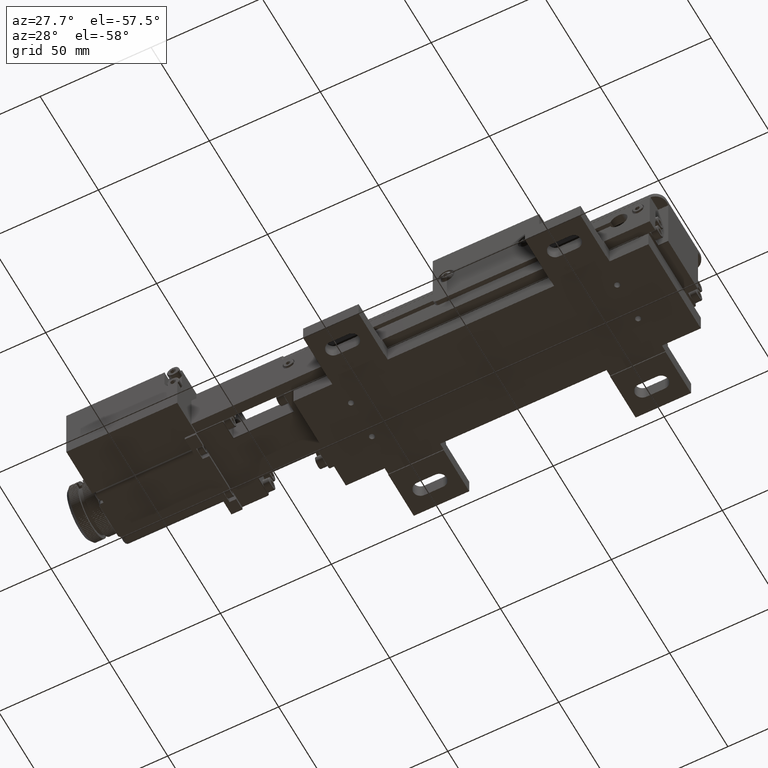
[diagram: clean part render]
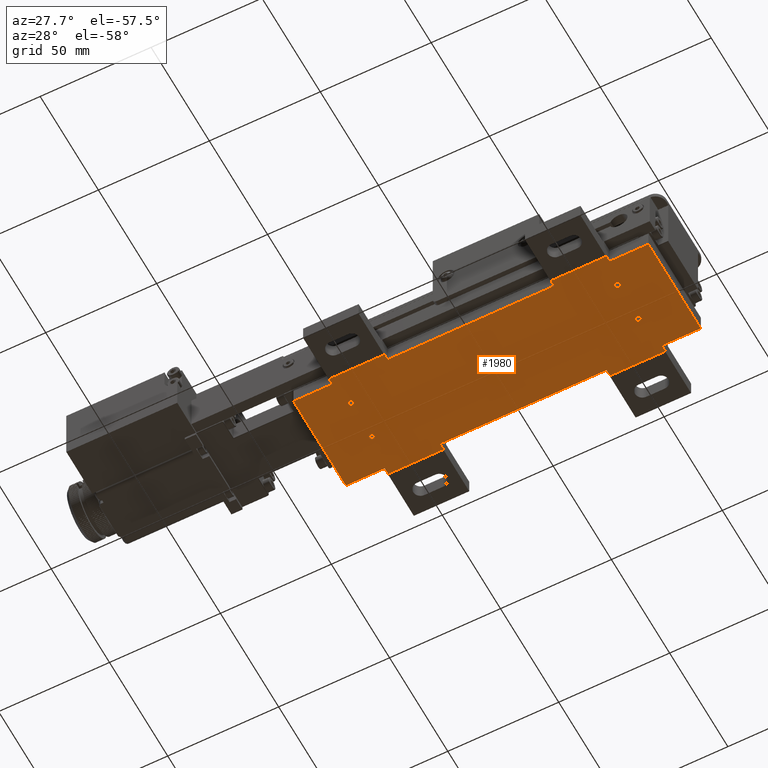
[diagram: same view with one face highlighted and labeled with its STEP entity id]
A machine part, auxiliary view. The second image highlights one B-rep face of the part: STEP entity #1980.
In plain terms, the highlighted planar face has unit normal (0, 0, -1).
Its self-contained STEP definition (entity closure, byte-faithful):
#21=FACE_BOUND('',#6661,.T.);
#22=FACE_BOUND('',#6662,.T.);
#23=FACE_BOUND('',#6663,.T.);
#24=FACE_BOUND('',#6664,.T.);
#522=PLANE('',#41165);
#1980=ADVANCED_FACE('',(#4317,#21,#22,#23,#24),#522,.T.);
#4317=FACE_OUTER_BOUND('',#6660,.T.);
#6660=EDGE_LOOP('',(#9391,#9392,#9393,#9394,#9395,#9396,#9397,#9398,#9399,
#9400,#9401,#9402,#9403,#9404,#9405,#9406,#9407,#9408,#9409,#9410));
#6661=EDGE_LOOP('',(#9411,#9412));
#6662=EDGE_LOOP('',(#9413,#9414));
#6663=EDGE_LOOP('',(#9415,#9416));
#6664=EDGE_LOOP('',(#9417,#9418));
#9391=ORIENTED_EDGE('',*,*,#22727,.F.);
#9392=ORIENTED_EDGE('',*,*,#22732,.F.);
#9393=ORIENTED_EDGE('',*,*,#22733,.F.);
#9394=ORIENTED_EDGE('',*,*,#22734,.F.);
#9395=ORIENTED_EDGE('',*,*,#22735,.F.);
#9396=ORIENTED_EDGE('',*,*,#22736,.F.);
#9397=ORIENTED_EDGE('',*,*,#22737,.F.);
#9398=ORIENTED_EDGE('',*,*,#22738,.F.);
#9399=ORIENTED_EDGE('',*,*,#22730,.F.);
#9400=ORIENTED_EDGE('',*,*,#22728,.T.);
#9401=ORIENTED_EDGE('',*,*,#22642,.F.);
#9402=ORIENTED_EDGE('',*,*,#22649,.F.);
#9403=ORIENTED_EDGE('',*,*,#22739,.F.);
#9404=ORIENTED_EDGE('',*,*,#22653,.F.);
#9405=ORIENTED_EDGE('',*,*,#22659,.F.);
#9406=ORIENTED_EDGE('',*,*,#22665,.F.);
#9407=ORIENTED_EDGE('',*,*,#22740,.F.);
#9408=ORIENTED_EDGE('',*,*,#22669,.F.);
#9409=ORIENTED_EDGE('',*,*,#22675,.F.);
#9410=ORIENTED_EDGE('',*,*,#22677,.T.);
#9411=ORIENTED_EDGE('',*,*,#22754,.F.);
#9412=ORIENTED_EDGE('',*,*,#22755,.F.);
#9413=ORIENTED_EDGE('',*,*,#22750,.F.);
#9414=ORIENTED_EDGE('',*,*,#22751,.F.);
#9415=ORIENTED_EDGE('',*,*,#22746,.F.);
#9416=ORIENTED_EDGE('',*,*,#22747,.F.);
#9417=ORIENTED_EDGE('',*,*,#22742,.F.);
#9418=ORIENTED_EDGE('',*,*,#22743,.F.);
#22642=EDGE_CURVE('',#36071,#36072,#29355,.T.);
#22649=EDGE_CURVE('',#36077,#36071,#29362,.T.);
#22653=EDGE_CURVE('',#36079,#36080,#29366,.T.);
#22659=EDGE_CURVE('',#36084,#36079,#29372,.T.);
#22665=EDGE_CURVE('',#36089,#36084,#29378,.T.);
#22669=EDGE_CURVE('',#36091,#36092,#29382,.T.);
#22675=EDGE_CURVE('',#36096,#36091,#29388,.T.);
#22677=EDGE_CURVE('',#36096,#36097,#29390,.T.);
#22727=EDGE_CURVE('',#36130,#36097,#29424,.T.);
#22728=EDGE_CURVE('',#36131,#36072,#29425,.T.);
#22730=EDGE_CURVE('',#36131,#36132,#29427,.T.);
#22732=EDGE_CURVE('',#36133,#36130,#29429,.T.);
#22733=EDGE_CURVE('',#36134,#36133,#29430,.T.);
#22734=EDGE_CURVE('',#36135,#36134,#29431,.T.);
#22735=EDGE_CURVE('',#36136,#36135,#29432,.T.);
#22736=EDGE_CURVE('',#36137,#36136,#29433,.T.);
#22737=EDGE_CURVE('',#36138,#36137,#29434,.T.);
#22738=EDGE_CURVE('',#36132,#36138,#29435,.T.);
#22739=EDGE_CURVE('',#36080,#36077,#29436,.T.);
#22740=EDGE_CURVE('',#36092,#36089,#29437,.T.);
#22742=EDGE_CURVE('',#36145,#36146,#33765,.T.);
#22743=EDGE_CURVE('',#36146,#36145,#33766,.T.);
#22746=EDGE_CURVE('',#36143,#36144,#33768,.T.);
#22747=EDGE_CURVE('',#36144,#36143,#33769,.T.);
#22750=EDGE_CURVE('',#36141,#36142,#33771,.T.);
#22751=EDGE_CURVE('',#36142,#36141,#33772,.T.);
#22754=EDGE_CURVE('',#36139,#36140,#33774,.T.);
#22755=EDGE_CURVE('',#36140,#36139,#33775,.T.);
#29355=B_SPLINE_CURVE_WITH_KNOTS('',1,(#62141,#62142),.UNSPECIFIED.,.F.,
 .F.,(2,2),(0.,17.5),.UNSPECIFIED.);
#29362=B_SPLINE_CURVE_WITH_KNOTS('',1,(#62155,#62156),.UNSPECIFIED.,.F.,
 .F.,(2,2),(0.,3.),.UNSPECIFIED.);
#29366=B_SPLINE_CURVE_WITH_KNOTS('',1,(#62163,#62164),.UNSPECIFIED.,.F.,
 .F.,(2,2),(0.,3.),.UNSPECIFIED.);
#29372=B_SPLINE_CURVE_WITH_KNOTS('',1,(#62175,#62176),.UNSPECIFIED.,.F.,
 .F.,(2,2),(0.,74.9999999999999),.UNSPECIFIED.);
#29378=B_SPLINE_CURVE_WITH_KNOTS('',1,(#62187,#62188),.UNSPECIFIED.,.F.,
 .F.,(2,2),(0.,3.),.UNSPECIFIED.);
#29382=B_SPLINE_CURVE_WITH_KNOTS('',1,(#62195,#62196),.UNSPECIFIED.,.F.,
 .F.,(2,2),(0.,3.0000000000001),.UNSPECIFIED.);
#29388=B_SPLINE_CURVE_WITH_KNOTS('',1,(#62207,#62208),.UNSPECIFIED.,.F.,
 .F.,(2,2),(0.,17.5000000000001),.UNSPECIFIED.);
#29390=B_SPLINE_CURVE_WITH_KNOTS('',1,(#62211,#62212),.UNSPECIFIED.,.F.,
 .F.,(2,2),(-44.9999999999999,0.),.UNSPECIFIED.);
#29424=B_SPLINE_CURVE_WITH_KNOTS('',1,(#62359,#62360),.UNSPECIFIED.,.F.,
 .F.,(2,2),(0.,17.5),.UNSPECIFIED.);
#29425=B_SPLINE_CURVE_WITH_KNOTS('',1,(#62361,#62362),.UNSPECIFIED.,.F.,
 .F.,(2,2),(-44.9999999999999,0.),.UNSPECIFIED.);
#29427=B_SPLINE_CURVE_WITH_KNOTS('',1,(#62365,#62366),.UNSPECIFIED.,.F.,
 .F.,(2,2),(0.,17.5),.UNSPECIFIED.);
#29429=B_SPLINE_CURVE_WITH_KNOTS('',1,(#62369,#62370),.UNSPECIFIED.,.F.,
 .F.,(2,2),(-2.9999999999999,0.),.UNSPECIFIED.);
#29430=B_SPLINE_CURVE_WITH_KNOTS('',1,(#62371,#62372),.UNSPECIFIED.,.F.,
 .F.,(2,2),(-25.,0.),.UNSPECIFIED.);
#29431=B_SPLINE_CURVE_WITH_KNOTS('',1,(#62373,#62374),.UNSPECIFIED.,.F.,
 .F.,(2,2),(-3.,0.),.UNSPECIFIED.);
#29432=B_SPLINE_CURVE_WITH_KNOTS('',1,(#62375,#62376),.UNSPECIFIED.,.F.,
 .F.,(2,2),(-75.,0.),.UNSPECIFIED.);
#29433=B_SPLINE_CURVE_WITH_KNOTS('',1,(#62377,#62378),.UNSPECIFIED.,.F.,
 .F.,(2,2),(-3.,0.),.UNSPECIFIED.);
#29434=B_SPLINE_CURVE_WITH_KNOTS('',1,(#62379,#62380),.UNSPECIFIED.,.F.,
 .F.,(2,2),(-25.,0.),.UNSPECIFIED.);
#29435=B_SPLINE_CURVE_WITH_KNOTS('',1,(#62381,#62382),.UNSPECIFIED.,.F.,
 .F.,(2,2),(-3.,0.),.UNSPECIFIED.);
#29436=B_SPLINE_CURVE_WITH_KNOTS('',1,(#62383,#62384),.UNSPECIFIED.,.F.,
 .F.,(2,2),(-25.,0.),.UNSPECIFIED.);
#29437=B_SPLINE_CURVE_WITH_KNOTS('',1,(#62385,#62386),.UNSPECIFIED.,.F.,
 .F.,(2,2),(-25.,0.),.UNSPECIFIED.);
#33765=(
BOUNDED_CURVE()
B_SPLINE_CURVE(2,(#62392,#62393,#62394,#62395,#62396),.UNSPECIFIED.,.F.,
 .F.)
B_SPLINE_CURVE_WITH_KNOTS((3,2,3),(0.,1.93129408379433,3.86258816758866),
 .UNSPECIFIED.)
CURVE()
GEOMETRIC_REPRESENTATION_ITEM()
RATIONAL_B_SPLINE_CURVE((1.,0.707106781186547,1.,0.707106781186547,1.))
REPRESENTATION_ITEM('')
);
#33766=(
BOUNDED_CURVE()
B_SPLINE_CURVE(2,(#62397,#62398,#62399,#62400,#62401),.UNSPECIFIED.,.F.,
 .F.)
B_SPLINE_CURVE_WITH_KNOTS((3,2,3),(0.,1.93129408379433,3.86258816758867),
 .UNSPECIFIED.)
CURVE()
GEOMETRIC_REPRESENTATION_ITEM()
RATIONAL_B_SPLINE_CURVE((1.,0.707106781186549,1.,0.707106781186549,1.))
REPRESENTATION_ITEM('')
);
#33768=(
BOUNDED_CURVE()
B_SPLINE_CURVE(2,(#62409,#62410,#62411,#62412,#62413),.UNSPECIFIED.,.F.,
 .F.)
B_SPLINE_CURVE_WITH_KNOTS((3,2,3),(0.,1.93129408379433,3.86258816758866),
 .UNSPECIFIED.)
CURVE()
GEOMETRIC_REPRESENTATION_ITEM()
RATIONAL_B_SPLINE_CURVE((1.,0.707106781186548,1.,0.707106781186548,1.))
REPRESENTATION_ITEM('')
);
#33769=(
BOUNDED_CURVE()
B_SPLINE_CURVE(2,(#62414,#62415,#62416,#62417,#62418),.UNSPECIFIED.,.F.,
 .F.)
B_SPLINE_CURVE_WITH_KNOTS((3,2,3),(0.,1.93129408379433,3.86258816758866),
 .UNSPECIFIED.)
CURVE()
GEOMETRIC_REPRESENTATION_ITEM()
RATIONAL_B_SPLINE_CURVE((1.,0.707106781186548,1.,0.707106781186548,1.))
REPRESENTATION_ITEM('')
);
#33771=(
BOUNDED_CURVE()
B_SPLINE_CURVE(2,(#62426,#62427,#62428,#62429,#62430),.UNSPECIFIED.,.F.,
 .F.)
B_SPLINE_CURVE_WITH_KNOTS((3,2,3),(0.,1.93129408379432,3.86258816758865),
 .UNSPECIFIED.)
CURVE()
GEOMETRIC_REPRESENTATION_ITEM()
RATIONAL_B_SPLINE_CURVE((1.,0.707106781186549,1.,0.707106781186549,1.))
REPRESENTATION_ITEM('')
);
#33772=(
BOUNDED_CURVE()
B_SPLINE_CURVE(2,(#62431,#62432,#62433,#62434,#62435),.UNSPECIFIED.,.F.,
 .F.)
B_SPLINE_CURVE_WITH_KNOTS((3,2,3),(0.,1.93129408379431,3.86258816758862),
 .UNSPECIFIED.)
CURVE()
GEOMETRIC_REPRESENTATION_ITEM()
RATIONAL_B_SPLINE_CURVE((1.,0.707106781186546,1.,0.707106781186546,1.))
REPRESENTATION_ITEM('')
);
#33774=(
BOUNDED_CURVE()
B_SPLINE_CURVE(2,(#62443,#62444,#62445,#62446,#62447),.UNSPECIFIED.,.F.,
 .F.)
B_SPLINE_CURVE_WITH_KNOTS((3,2,3),(0.,1.93129408379433,3.86258816758866),
 .UNSPECIFIED.)
CURVE()
GEOMETRIC_REPRESENTATION_ITEM()
RATIONAL_B_SPLINE_CURVE((1.,0.707106781186548,1.,0.707106781186548,1.))
REPRESENTATION_ITEM('')
);
#33775=(
BOUNDED_CURVE()
B_SPLINE_CURVE(2,(#62448,#62449,#62450,#62451,#62452),.UNSPECIFIED.,.F.,
 .F.)
B_SPLINE_CURVE_WITH_KNOTS((3,2,3),(0.,1.93129408379433,3.86258816758866),
 .UNSPECIFIED.)
CURVE()
GEOMETRIC_REPRESENTATION_ITEM()
RATIONAL_B_SPLINE_CURVE((1.,0.707106781186548,1.,0.707106781186548,1.))
REPRESENTATION_ITEM('')
);
#36071=VERTEX_POINT('',#57639);
#36072=VERTEX_POINT('',#57640);
#36077=VERTEX_POINT('',#57645);
#36079=VERTEX_POINT('',#57647);
#36080=VERTEX_POINT('',#57648);
#36084=VERTEX_POINT('',#57652);
#36089=VERTEX_POINT('',#57657);
#36091=VERTEX_POINT('',#57659);
#36092=VERTEX_POINT('',#57660);
#36096=VERTEX_POINT('',#57664);
#36097=VERTEX_POINT('',#57665);
#36130=VERTEX_POINT('',#57698);
#36131=VERTEX_POINT('',#57699);
#36132=VERTEX_POINT('',#57700);
#36133=VERTEX_POINT('',#57701);
#36134=VERTEX_POINT('',#57702);
#36135=VERTEX_POINT('',#57703);
#36136=VERTEX_POINT('',#57704);
#36137=VERTEX_POINT('',#57705);
#36138=VERTEX_POINT('',#57706);
#36139=VERTEX_POINT('',#57707);
#36140=VERTEX_POINT('',#57708);
#36141=VERTEX_POINT('',#57709);
#36142=VERTEX_POINT('',#57710);
#36143=VERTEX_POINT('',#57711);
#36144=VERTEX_POINT('',#57712);
#36145=VERTEX_POINT('',#57713);
#36146=VERTEX_POINT('',#57714);
#41165=AXIS2_PLACEMENT_3D('',#45514,#43231,$);
#43231=DIRECTION('',(0.,0.,-1.));
#45514=CARTESIAN_POINT('',(-45.1200005425055,-30.7200008414871,0.501559602504851));
#57639=CARTESIAN_POINT('',(113.499999457495,-22.5000008414869,0.501559602504823));
#57640=CARTESIAN_POINT('',(130.999999457495,-22.5000008414868,0.501559602504823));
#57645=CARTESIAN_POINT('',(113.499999457495,-25.5000008414869,0.501559602504823));
#57647=CARTESIAN_POINT('',(88.4999994574945,-22.5000008414869,0.501559602504823));
#57648=CARTESIAN_POINT('',(88.4999994574945,-25.5000008414869,0.501559602504823));
#57652=CARTESIAN_POINT('',(13.4999994574946,-22.5000008414869,0.501559602504823));
#57657=CARTESIAN_POINT('',(13.4999994574946,-25.5000008414869,0.501559602504823));
#57659=CARTESIAN_POINT('',(-11.5000005425054,-22.5000008414869,0.501559602504923));
#57660=CARTESIAN_POINT('',(-11.5000005425054,-25.500000841487,0.501559602504923));
#57664=CARTESIAN_POINT('',(-29.0000005425055,-22.5000008414869,0.501559602504923));
#57665=CARTESIAN_POINT('',(-29.0000005425055,22.499999158513,0.501559602504845));
#57698=CARTESIAN_POINT('',(-11.5000005425055,22.4999991585131,0.501559602504845));
#57699=CARTESIAN_POINT('',(130.999999457495,22.4999991585131,0.501559602504845));
#57700=CARTESIAN_POINT('',(113.499999457495,22.4999991585131,0.501559602504845));
#57701=CARTESIAN_POINT('',(-11.5000005425055,25.499999158513,0.501559602504845));
#57702=CARTESIAN_POINT('',(13.4999994574945,25.499999158513,0.501559602504845));
#57703=CARTESIAN_POINT('',(13.4999994574945,22.499999158513,0.501559602504845));
#57704=CARTESIAN_POINT('',(88.4999994574945,22.4999991585131,0.501559602504845));
#57705=CARTESIAN_POINT('',(88.4999994574945,25.4999991585131,0.501559602504845));
#57706=CARTESIAN_POINT('',(113.499999457495,25.4999991585131,0.501559602504845));
#57707=CARTESIAN_POINT('',(-7.77050054250469,-11.200000841487,0.501559602504823));
#57708=CARTESIAN_POINT('',(-10.2295005425047,-11.200000841487,0.501559602504926));
#57709=CARTESIAN_POINT('',(112.229499457497,-11.2000008414869,0.501559602504823));
#57710=CARTESIAN_POINT('',(109.770499457497,-11.2000008414869,0.501559602504827));
#57711=CARTESIAN_POINT('',(112.229499457497,6.79999915851301,0.50155960250483));
#57712=CARTESIAN_POINT('',(109.770499457497,6.79999915851301,0.501559602504834));
#57713=CARTESIAN_POINT('',(-7.77050054250469,6.79999915851294,0.50155960250483));
#57714=CARTESIAN_POINT('',(-10.2295005425047,6.79999915851293,0.501559602504834));
#62141=CARTESIAN_POINT('',(113.499999457495,-22.5000008414869,0.501559602504823));
#62142=CARTESIAN_POINT('',(130.999999457495,-22.5000008414868,0.501559602504823));
#62155=CARTESIAN_POINT('',(113.499999457495,-25.5000008414869,0.501559602504823));
#62156=CARTESIAN_POINT('',(113.499999457495,-22.5000008414869,0.501559602504823));
#62163=CARTESIAN_POINT('',(88.4999994574945,-22.5000008414869,0.501559602504823));
#62164=CARTESIAN_POINT('',(88.4999994574945,-25.5000008414869,0.501559602504823));
#62175=CARTESIAN_POINT('',(13.4999994574946,-22.5000008414869,0.501559602504823));
#62176=CARTESIAN_POINT('',(88.4999994574945,-22.5000008414869,0.501559602504823));
#62187=CARTESIAN_POINT('',(13.4999994574946,-25.5000008414869,0.501559602504823));
#62188=CARTESIAN_POINT('',(13.4999994574946,-22.5000008414869,0.501559602504823));
#62195=CARTESIAN_POINT('',(-11.5000005425054,-22.5000008414869,0.501559602504923));
#62196=CARTESIAN_POINT('',(-11.5000005425054,-25.500000841487,0.501559602504923));
#62207=CARTESIAN_POINT('',(-29.0000005425055,-22.5000008414869,0.501559602504923));
#62208=CARTESIAN_POINT('',(-11.5000005425054,-22.5000008414869,0.501559602504923));
#62211=CARTESIAN_POINT('',(-29.0000005425055,-22.5000008414869,0.501559602504923));
#62212=CARTESIAN_POINT('',(-29.0000005425055,22.499999158513,0.501559602504845));
#62359=CARTESIAN_POINT('',(-11.5000005425055,22.4999991585131,0.501559602504845));
#62360=CARTESIAN_POINT('',(-29.0000005425055,22.499999158513,0.501559602504845));
#62361=CARTESIAN_POINT('',(130.999999457495,22.4999991585131,0.501559602504845));
#62362=CARTESIAN_POINT('',(130.999999457495,-22.5000008414868,0.501559602504823));
#62365=CARTESIAN_POINT('',(130.999999457495,22.4999991585131,0.501559602504845));
#62366=CARTESIAN_POINT('',(113.499999457495,22.4999991585131,0.501559602504845));
#62369=CARTESIAN_POINT('',(-11.5000005425055,25.499999158513,0.501559602504845));
#62370=CARTESIAN_POINT('',(-11.5000005425055,22.4999991585131,0.501559602504845));
#62371=CARTESIAN_POINT('',(13.4999994574945,25.499999158513,0.501559602504845));
#62372=CARTESIAN_POINT('',(-11.5000005425055,25.499999158513,0.501559602504845));
#62373=CARTESIAN_POINT('',(13.4999994574945,22.499999158513,0.501559602504845));
#62374=CARTESIAN_POINT('',(13.4999994574945,25.499999158513,0.501559602504845));
#62375=CARTESIAN_POINT('',(88.4999994574945,22.4999991585131,0.501559602504845));
#62376=CARTESIAN_POINT('',(13.4999994574945,22.499999158513,0.501559602504845));
#62377=CARTESIAN_POINT('',(88.4999994574945,25.4999991585131,0.501559602504845));
#62378=CARTESIAN_POINT('',(88.4999994574945,22.4999991585131,0.501559602504845));
#62379=CARTESIAN_POINT('',(113.499999457495,25.4999991585131,0.501559602504845));
#62380=CARTESIAN_POINT('',(88.4999994574945,25.4999991585131,0.501559602504845));
#62381=CARTESIAN_POINT('',(113.499999457495,22.4999991585131,0.501559602504845));
#62382=CARTESIAN_POINT('',(113.499999457495,25.4999991585131,0.501559602504845));
#62383=CARTESIAN_POINT('',(88.4999994574945,-25.5000008414869,0.501559602504823));
#62384=CARTESIAN_POINT('',(113.499999457495,-25.5000008414869,0.501559602504823));
#62385=CARTESIAN_POINT('',(-11.5000005425054,-25.500000841487,0.501559602504923));
#62386=CARTESIAN_POINT('',(13.4999994574946,-25.5000008414869,0.501559602504823));
#62392=CARTESIAN_POINT('',(-7.77050054250469,6.79999915851294,0.501559602504827));
#62393=CARTESIAN_POINT('',(-7.77050054250468,5.57049915851293,0.501559602504827));
#62394=CARTESIAN_POINT('',(-9.00000054250469,5.57049915851293,0.50155960250483));
#62395=CARTESIAN_POINT('',(-10.2295005425047,5.57049915851292,0.501559602504834));
#62396=CARTESIAN_POINT('',(-10.2295005425047,6.79999915851293,0.501559602504834));
#62397=CARTESIAN_POINT('',(-10.2295005425047,6.79999915851293,0.501559602504834));
#62398=CARTESIAN_POINT('',(-10.2295005425047,8.02949915851293,0.501559602504834));
#62399=CARTESIAN_POINT('',(-9.00000054250471,8.02949915851294,0.501559602504834));
#62400=CARTESIAN_POINT('',(-7.7705005425047,8.02949915851294,0.501559602504834));
#62401=CARTESIAN_POINT('',(-7.77050054250469,6.79999915851294,0.501559602504834));
#62409=CARTESIAN_POINT('',(112.229499457497,6.79999915851301,0.501559602504827));
#62410=CARTESIAN_POINT('',(112.229499457497,5.57049915851301,0.501559602504827));
#62411=CARTESIAN_POINT('',(110.999999457497,5.57049915851301,0.50155960250483));
#62412=CARTESIAN_POINT('',(109.770499457497,5.57049915851301,0.501559602504834));
#62413=CARTESIAN_POINT('',(109.770499457497,6.79999915851301,0.501559602504834));
#62414=CARTESIAN_POINT('',(109.770499457497,6.79999915851301,0.501559602504834));
#62415=CARTESIAN_POINT('',(109.770499457497,8.02949915851301,0.501559602504834));
#62416=CARTESIAN_POINT('',(110.999999457497,8.02949915851301,0.501559602504834));
#62417=CARTESIAN_POINT('',(112.229499457497,8.02949915851301,0.501559602504834));
#62418=CARTESIAN_POINT('',(112.229499457497,6.79999915851301,0.501559602504834));
#62426=CARTESIAN_POINT('',(112.229499457497,-11.2000008414869,0.50155960250482));
#62427=CARTESIAN_POINT('',(112.229499457497,-12.4295008414869,0.501559602504819));
#62428=CARTESIAN_POINT('',(110.999999457497,-12.4295008414869,0.501559602504823));
#62429=CARTESIAN_POINT('',(109.770499457497,-12.4295008414869,0.501559602504827));
#62430=CARTESIAN_POINT('',(109.770499457497,-11.2000008414869,0.501559602504827));
#62431=CARTESIAN_POINT('',(109.770499457497,-11.2000008414869,0.501559602504827));
#62432=CARTESIAN_POINT('',(109.770499457497,-9.97050084148695,0.501559602504827));
#62433=CARTESIAN_POINT('',(110.999999457497,-9.97050084148695,0.501559602504827));
#62434=CARTESIAN_POINT('',(112.229499457497,-9.97050084148694,0.501559602504827));
#62435=CARTESIAN_POINT('',(112.229499457497,-11.2000008414869,0.501559602504827));
#62443=CARTESIAN_POINT('',(-7.77050054250469,-11.200000841487,0.50155960250482));
#62444=CARTESIAN_POINT('',(-7.77050054250469,-12.429500841487,0.50155960250482));
#62445=CARTESIAN_POINT('',(-9.00000054250469,-12.429500841487,0.501559602504873));
#62446=CARTESIAN_POINT('',(-10.2295005425047,-12.429500841487,0.501559602504926));
#62447=CARTESIAN_POINT('',(-10.2295005425047,-11.200000841487,0.501559602504926));
#62448=CARTESIAN_POINT('',(-10.2295005425047,-11.200000841487,0.501559602504926));
#62449=CARTESIAN_POINT('',(-10.2295005425047,-9.97050084148702,0.501559602504926));
#62450=CARTESIAN_POINT('',(-9.00000054250469,-9.97050084148702,0.501559602504877));
#62451=CARTESIAN_POINT('',(-7.77050054250469,-9.97050084148702,0.501559602504827));
#62452=CARTESIAN_POINT('',(-7.77050054250469,-11.200000841487,0.501559602504827));